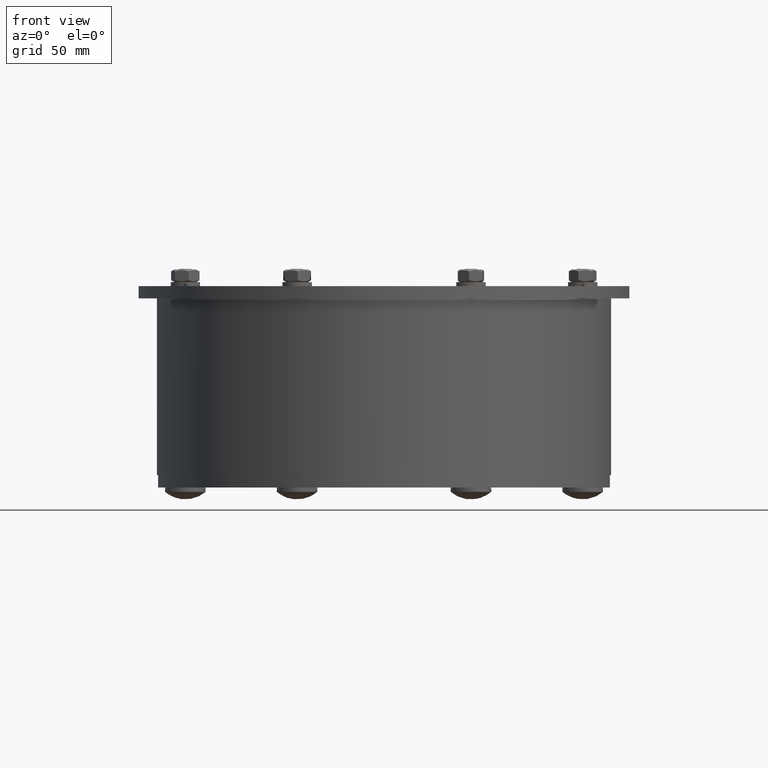
[diagram: clean part render]
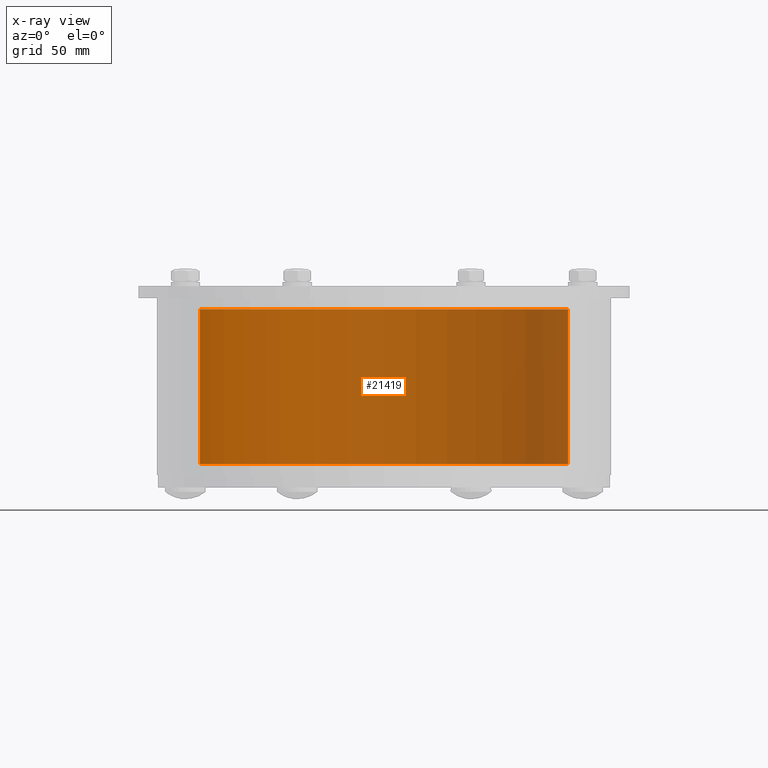
[diagram: x-ray — body ghosted, one internal face saturated and labeled with its STEP entity id]
A machine part, front view, then the same camera in x-ray: the body is ghosted and one INTERNAL B-rep face — a face not visible from any outside direction — is saturated and labeled: STEP entity #21419.
In plain terms, the highlighted cylindrical surface (partial cylindrical patch) has radius 75 mm, axis along (0, -0, -1).
Its self-contained STEP definition (entity closure, byte-faithful):
#21378=CARTESIAN_POINT('',(0.0,0.0,0.0));
#21379=DIRECTION('',(0.0,0.0,1.0));
#21380=DIRECTION('',(1.0,0.0,0.0));
#21381=AXIS2_PLACEMENT_3D('',#21378,#21379,#21380);
#21382=CYLINDRICAL_SURFACE('',#21381,75.0);
#21383=CARTESIAN_POINT('',(75.0,0.0,0.0));
#21384=VERTEX_POINT('',#21383);
#21385=CARTESIAN_POINT('',(-75.0,0.0,0.0));
#21386=VERTEX_POINT('',#21385);
#21387=CARTESIAN_POINT('',(0.0,0.0,0.0));
#21388=DIRECTION('',(0.0,0.0,1.0));
#21389=DIRECTION('',(1.0,0.0,0.0));
#21390=AXIS2_PLACEMENT_3D('',#21387,#21388,#21389);
#21391=CIRCLE('',#21390,75.0);
#21392=EDGE_CURVE('',#21384,#21386,#21391,.T.);
#21393=ORIENTED_EDGE('',*,*,#21392,.T.);
#21394=CARTESIAN_POINT('',(-75.0,0.0,63.000000000000007));
#21395=VERTEX_POINT('',#21394);
#21396=CARTESIAN_POINT('',(-75.0,0.0,0.0));
#21397=DIRECTION('',(0.0,0.0,1.0));
#21398=VECTOR('',#21397,63.000000000000007);
#21399=LINE('',#21396,#21398);
#21400=EDGE_CURVE('',#21386,#21395,#21399,.T.);
#21401=ORIENTED_EDGE('',*,*,#21400,.T.);
#21402=CARTESIAN_POINT('',(75.0,0.0,63.000000000000007));
#21403=VERTEX_POINT('',#21402);
#21404=CARTESIAN_POINT('',(0.0,0.0,63.000000000000007));
#21405=DIRECTION('',(0.0,0.0,1.0));
#21406=DIRECTION('',(1.0,0.0,0.0));
#21407=AXIS2_PLACEMENT_3D('',#21404,#21405,#21406);
#21408=CIRCLE('',#21407,75.0);
#21409=EDGE_CURVE('',#21403,#21395,#21408,.T.);
#21410=ORIENTED_EDGE('',*,*,#21409,.F.);
#21411=CARTESIAN_POINT('',(75.0,0.0,0.0));
#21412=DIRECTION('',(0.0,0.0,1.0));
#21413=VECTOR('',#21412,63.000000000000007);
#21414=LINE('',#21411,#21413);
#21415=EDGE_CURVE('',#21384,#21403,#21414,.T.);
#21416=ORIENTED_EDGE('',*,*,#21415,.F.);
#21417=EDGE_LOOP('',(#21393,#21401,#21410,#21416));
#21418=FACE_OUTER_BOUND('',#21417,.T.);
#21419=ADVANCED_FACE('',(#21418),#21382,.T.);